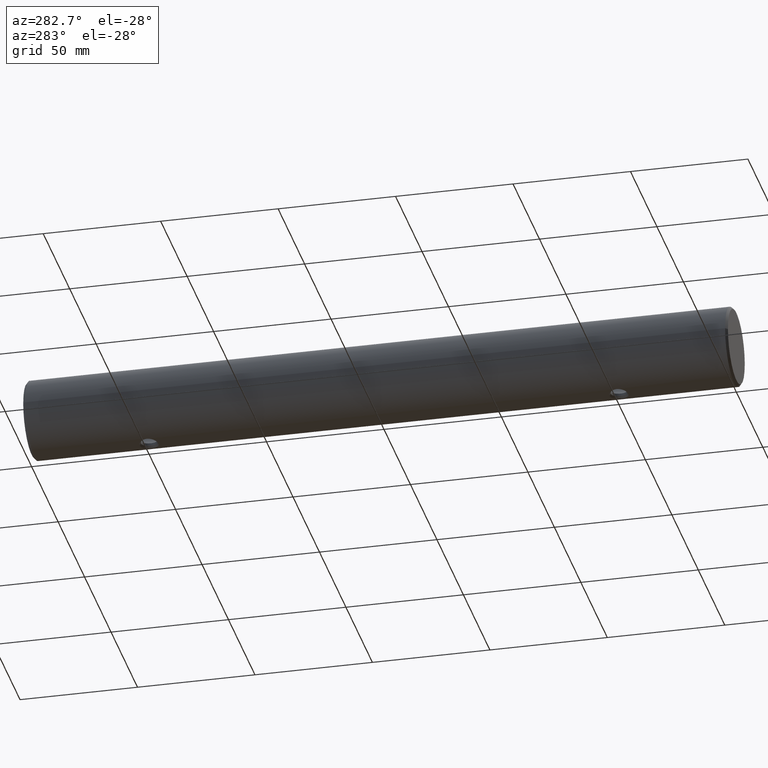
[diagram: clean part render]
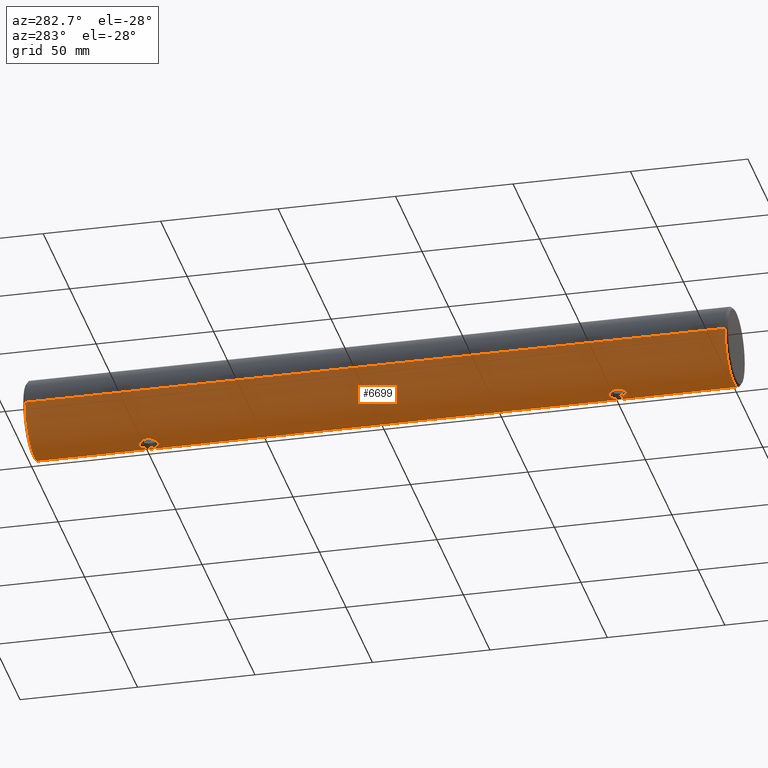
[diagram: same view with one face highlighted and labeled with its STEP entity id]
A machine part, auxiliary view. The second image highlights one B-rep face of the part: STEP entity #6699.
In plain terms, the highlighted cylindrical surface (partial cylindrical patch) has radius 16.85 mm, axis along (-0, 1, -0).
Its self-contained STEP definition (entity closure, byte-faithful):
#37 = CARTESIAN_POINT ( 'NONE',  ( -3.837042047171622000, 101.6554111769435000, -16.40739376038673200 ) ) ;
#103 = DIRECTION ( 'NONE',  ( -1.000000000000000000, 0.0000000000000000000, 0.0000000000000000000 ) ) ;
#191 = CARTESIAN_POINT ( 'NONE',  ( -0.2800285594003235100, -95.99803607256146200, -16.84994530848629400 ) ) ;
#286 = CARTESIAN_POINT ( 'NONE',  ( -3.343415595767132800, -97.56258584142953800, -16.51520715125525000 ) ) ;
#329 = ORIENTED_EDGE ( 'NONE', *, *, #4824, .T. ) ;
#428 = DIRECTION ( 'NONE',  ( -1.000000000000000000, 0.0000000000000000000, 0.0000000000000000000 ) ) ;
#810 = FACE_OUTER_BOUND ( 'NONE', #14661, .T. ) ;
#841 = CARTESIAN_POINT ( 'NONE',  ( -3.423453887774091400, -102.3348839833501400, -16.49874419015992200 ) ) ;
#842 = CARTESIAN_POINT ( 'NONE',  ( -4.211731938987219000, 100.2623335797606200, -16.31514063911546900 ) ) ;
#887 = CARTESIAN_POINT ( 'NONE',  ( -1.360069313371323300, -103.7967521871487300, -16.79695426008747800 ) ) ;
#940 = CARTESIAN_POINT ( 'NONE',  ( -3.166655777992651200, -102.6419675782159700, -16.55000769960733500 ) ) ;
#978 = ORIENTED_EDGE ( 'NONE', *, *, #14134, .T. ) ;
#1000 = CARTESIAN_POINT ( 'NONE',  ( -2.112323122245880500, -103.4724136981685100, -16.71868724592423700 ) ) ;
#1049 = CARTESIAN_POINT ( 'NONE',  ( -1.867474881313892400, -103.5967352214258900, -16.74813418026936100 ) ) ;
#1097 = CARTESIAN_POINT ( 'NONE',  ( 0.2749665284855278300, 96.00416536418525500, -16.84832619817539600 ) ) ;
#1108 = CARTESIAN_POINT ( 'NONE',  ( 3.074238659617456000, 102.7387534976549300, -16.56748029639546300 ) ) ;
#1151 = CARTESIAN_POINT ( 'NONE',  ( 2.783036976575692400, 96.98461959690637000, -16.61976461277006200 ) ) ;
#1163 = CARTESIAN_POINT ( 'NONE',  ( 3.776710975074770300, 101.7762612725322700, -16.42143214178963400 ) ) ;
#1222 = CARTESIAN_POINT ( 'NONE',  ( 3.574024045909137500, 102.1213676933236200, -16.46678278271516400 ) ) ;
#1276 = CARTESIAN_POINT ( 'NONE',  ( 3.835645768178963100, 101.6582906262441500, -16.40771981741140800 ) ) ;
#1385 = CARTESIAN_POINT ( 'NONE',  ( 3.574024045666451600, -97.87863230635186100, -16.46678278276668600 ) ) ;
#1482 = CARTESIAN_POINT ( 'NONE',  ( 3.165549653021699800, -97.35689035878904500, -16.55021605181866200 ) ) ;
#1525 = CARTESIAN_POINT ( 'NONE',  ( 4.103373155876829200, 99.08835430959948100, -16.34275425717642300 ) ) ;
#1595 = CARTESIAN_POINT ( 'NONE',  ( 1.869556208068528600, -96.40406576300942700, -16.74793927531469300 ) ) ;
#1811 = CARTESIAN_POINT ( 'NONE',  ( 4.211730070169865700, -99.99626092956032200, -16.31514112154808100 ) ) ;
#2039 = CARTESIAN_POINT ( 'NONE',  ( -16.85000000000010100, 150.0000000000000000, 0.0000000000000000000 ) ) ;
#2090 = CARTESIAN_POINT ( 'NONE',  ( 3.368925213785380000, -102.4586159329400900, -16.51454889763341400 ) ) ;
#2092 = CARTESIAN_POINT ( 'NONE',  ( -4.211731908247745800, 100.0000000000000000, -16.31514064705082100 ) ) ;
#2136 = EDGE_CURVE ( 'NONE', #15360, #12032, #5564, .T. ) ;
#2146 = CARTESIAN_POINT ( 'NONE',  ( -2.457226799590027000, 96.74690077399749600, -16.67027337823890700 ) ) ;
#2202 = CARTESIAN_POINT ( 'NONE',  ( -2.457226800053210300, -103.2530992257275700, -16.67027337817388100 ) ) ;
#2227 = DIRECTION ( 'NONE',  ( -1.000000000000000000, 0.0000000000000000000, 0.0000000000000000000 ) ) ;
#2250 = CARTESIAN_POINT ( 'NONE',  ( 3.677872854701027100, -102.0199067356602900, -16.44516054835499500 ) ) ;
#2309 = CARTESIAN_POINT ( 'NONE',  ( 3.943095795867362300, -101.4125843570392500, -16.38223024138953600 ) ) ;
#2360 = CARTESIAN_POINT ( 'NONE',  ( -16.85000000000014700, 149.0000000000000000, 0.0000000000000000000 ) ) ;
#2384 = CARTESIAN_POINT ( 'NONE',  ( 1.092724770926685900, 103.8740120444929000, -16.81671217818174200 ) ) ;
#2424 = CARTESIAN_POINT ( 'NONE',  ( 1.096819131793740400, 96.12701787678867000, -16.81645108300414600 ) ) ;
#2436 = CARTESIAN_POINT ( 'NONE',  ( 2.566736434887881400, 103.1837576096671300, -16.65494719251006100 ) ) ;
#2476 = CARTESIAN_POINT ( 'NONE',  ( 3.989646332264936500, 98.71084474834933100, -16.37091737067200000 ) ) ;
#2478 = ORIENTED_EDGE ( 'NONE', *, *, #2136, .F. ) ;
#2486 = CARTESIAN_POINT ( 'NONE',  ( -3.076975925597483600, 102.7359345154787900, -16.56696710249646600 ) ) ;
#2544 = CARTESIAN_POINT ( 'NONE',  ( -1.097480643936445300, 103.8728910208368200, -16.81642323792736000 ) ) ;
#2565 = DIRECTION ( 'NONE',  ( -3.061616997868382600E-016, 1.000000000000000000, -0.0000000000000000000 ) ) ;
#2645 = VERTEX_POINT ( 'NONE', #11725 ) ;
#2701 = CARTESIAN_POINT ( 'NONE',  ( -3.076975925502134100, -97.26406548443048900, -16.56696710251358700 ) ) ;
#2722 = VERTEX_POINT ( 'NONE', #15669 ) ;
#2756 = CARTESIAN_POINT ( 'NONE',  ( -2.125748111581590800, -96.50579600969936700, -16.72312987429675200 ) ) ;
#2809 = CARTESIAN_POINT ( 'NONE',  ( -1.365344543995390000, -96.20497208321525300, -16.79652281672624900 ) ) ;
#2853 = CARTESIAN_POINT ( 'NONE',  ( 2.111181489174618800, -96.52715720709132100, -16.71880123189894700 ) ) ;
#3080 = CARTESIAN_POINT ( 'NONE',  ( -4.211731908247800000, -100.0000000000000000, -16.31514064705079300 ) ) ;
#3366 = CARTESIAN_POINT ( 'NONE',  ( 0.5520275916941025400, 96.03013555184000400, -16.84152510344355500 ) ) ;
#3369 = CARTESIAN_POINT ( 'NONE',  ( -2.125748109811671500, 103.4942039912003800, -16.72312987446758100 ) ) ;
#3415 = CARTESIAN_POINT ( 'NONE',  ( -0.2757959065618584800, 95.99780212068685600, -16.85000435249002500 ) ) ;
#3466 = CARTESIAN_POINT ( 'NONE',  ( -2.566103789043500800, 96.82376236344474300, -16.65380172217056700 ) ) ;
#3525 = CARTESIAN_POINT ( 'NONE',  ( 4.211730070169865700, -99.99626092956032200, -16.31514112154808100 ) ) ;
#3546 = B_SPLINE_CURVE_WITH_KNOTS ( 'NONE', 3,
 ( #15264, #12768, #7758, #12865, #5380, #9124, #1385, #3911, #10329, #1482, #12660, #10379, #5170, #2853, #1595, #7715, #13921, #6436, #7812, #6594, #15150, #191, #10282, #8963, #2809, #2756, #10231, #2701, #11477, #286, #3968, #12713, #13967, #5272, #11586, #12812, #5329, #6494, #14382, #4281, #9391, #10487 ),
 .UNSPECIFIED., .F., .F.,
 ( 4, 2, 2, 2, 2, 2, 2, 2, 2, 2, 2, 2, 2, 2, 2, 2, 2, 2, 2, 2, 4 ),
 ( 0.5000000000000000000, 0.5624999999999977800, 0.5781249999999973400, 0.5937499999999966700, 0.6093749999999962300, 0.6249999999999956700, 0.6562499999999957800, 0.6874999999999957800, 0.7187499999999958900, 0.7343749999999961100, 0.7499999999999962300, 0.7812499999999966700, 0.8124999999999971100, 0.8749999999999984500, 0.8906249999999988900, 0.9062499999999993300, 0.9218749999999996700, 0.9375000000000000000, 0.9531250000000004400, 0.9687500000000008900, 1.000000000000000000 ),
 .UNSPECIFIED. ) ;
#3586 = CARTESIAN_POINT ( 'NONE',  ( 4.185015913652337700, -100.5221823759833100, -16.32211057644791600 ) ) ;
#3632 = CARTESIAN_POINT ( 'NONE',  ( 3.677872854981181700, 97.98009326513638900, -16.44516054828850200 ) ) ;
#3654 = CARTESIAN_POINT ( 'NONE',  ( -4.211731908247800000, -100.0000000000000000, -16.31514064705079300 ) ) ;
#3693 = CARTESIAN_POINT ( 'NONE',  ( 1.869556208286316400, 103.5959342368495200, -16.74793927529373500 ) ) ;
#3756 = CARTESIAN_POINT ( 'NONE',  ( -3.167954837395362800, 102.6405675005593000, -16.54976003581669600 ) ) ;
#3806 = CARTESIAN_POINT ( 'NONE',  ( -4.070027994292599900, 101.0378539592674500, -16.35111933031466700 ) ) ;
#3911 = CARTESIAN_POINT ( 'NONE',  ( 3.421433406940821400, -97.66246040978005300, -16.49916290408979000 ) ) ;
#3968 = CARTESIAN_POINT ( 'NONE',  ( -3.425803771748325400, -97.66820793005864200, -16.49825689640170300 ) ) ;
#4098 = CARTESIAN_POINT ( 'NONE',  ( -4.255647627037048900E-014, 149.0000000000000000, 0.0000000000000000000 ) ) ;
#4281 = CARTESIAN_POINT ( 'NONE',  ( -4.184601887936769200, -99.47624234911216900, -16.32221440565154000 ) ) ;
#4578 = VECTOR ( 'NONE', #8671, 1000.000000000000000 ) ;
#4659 = DIRECTION ( 'NONE',  ( -3.061616997868382600E-016, 1.000000000000000000, -0.0000000000000000000 ) ) ;
#4662 = CARTESIAN_POINT ( 'NONE',  ( -3.652583352767034200, 97.99034756238596300, -16.45009180361279600 ) ) ;
#4824 = EDGE_CURVE ( 'NONE', #10150, #8666, #3546, .T. ) ;
#4876 = ORIENTED_EDGE ( 'NONE', *, *, #12129, .T. ) ;
#4889 = CARTESIAN_POINT ( 'NONE',  ( 2.111181490249651300, 103.4728427922653500, -16.71880123174825500 ) ) ;
#4941 = CARTESIAN_POINT ( 'NONE',  ( 0.6905363496069736300, 96.04978702246693000, -16.83639047891821100 ) ) ;
#4951 = CARTESIAN_POINT ( 'NONE',  ( 0.1350485449509534800, 104.0022927717068600, -16.85002685795235800 ) ) ;
#5006 = CARTESIAN_POINT ( 'NONE',  ( -3.343415595767683000, 102.4374141585502100, -16.51520715125516100 ) ) ;
#5170 = CARTESIAN_POINT ( 'NONE',  ( 2.566736435962948100, -96.81624239097625700, -16.65494719235938000 ) ) ;
#5272 = CARTESIAN_POINT ( 'NONE',  ( -3.778863592558143700, -98.22791807784989300, -16.42093452297796900 ) ) ;
#5329 = CARTESIAN_POINT ( 'NONE',  ( -3.989226575757193900, -98.70962183040177300, -16.37102020509987500 ) ) ;
#5331 = CARTESIAN_POINT ( 'NONE',  ( 16.85000000000005800, 149.0000000000000000, 2.063529856563300100E-015 ) ) ;
#5380 = CARTESIAN_POINT ( 'NONE',  ( 3.776710974963771900, -98.22373872729042400, -16.42143214181470900 ) ) ;
#5399 = EDGE_CURVE ( 'NONE', #12032, #15801, #11025, .T. ) ;
#5564 = LINE ( 'NONE', #9812, #4578 ) ;
#5594 = CARTESIAN_POINT ( 'NONE',  ( 4.211730070169818600, 100.0037390704396900, -16.31514112154808100 ) ) ;
#5826 = CARTESIAN_POINT ( 'NONE',  ( -4.075885968968390400, -101.0416205046367000, -16.34970193961256200 ) ) ;
#5855 = VECTOR ( 'NONE', #4659, 1000.000000000000000 ) ;
#5878 = CARTESIAN_POINT ( 'NONE',  ( 0.1382966399004232900, -104.0021776382925900, -16.84999782061063600 ) ) ;
#5931 = CARTESIAN_POINT ( 'NONE',  ( 3.989646332193880400, -101.2891552518925400, -16.37091737068951500 ) ) ;
#5979 = CARTESIAN_POINT ( 'NONE',  ( -3.423453887773684200, 97.66511601666884700, -16.49874419016001100 ) ) ;
#6033 = CARTESIAN_POINT ( 'NONE',  ( 1.870609915823259200, -103.5954066856895100, -16.74781125501190400 ) ) ;
#6097 = CARTESIAN_POINT ( 'NONE',  ( 0.5520275906606121300, -103.9698644482979400, -16.84152510346892500 ) ) ;
#6103 = B_SPLINE_CURVE_WITH_KNOTS ( 'NONE', 3,
 ( #10657, #14764, #13574, #10875, #7310, #7148, #4662, #5979, #7361, #11089, #10981, #14816, #12234, #3466, #2146, #13360, #7249, #16002, #16059, #8627, #3415, #10926, #1097, #3366, #4941, #2424, #14051, #9116, #14979, #7586, #1151, #6203, #3632, #13625, #2476, #7478, #1525, #9890, #12435, #8688 ),
 .UNSPECIFIED., .F., .F.,
 ( 4, 2, 2, 2, 2, 2, 2, 2, 2, 2, 2, 2, 2, 2, 2, 2, 2, 2, 2, 4 ),
 ( 0.0000000000000000000, 0.03124999999999819600, 0.06249999999999639200, 0.09374999999999458800, 0.1093749999999943500, 0.1249999999999941200, 0.1406249999999938700, 0.1562499999999936400, 0.1874999999999940000, 0.2187499999999943700, 0.2499999999999947300, 0.2656249999999949500, 0.2812499999999951200, 0.3124999999999955600, 0.3437499999999959500, 0.3749999999999963900, 0.4374999999999982800, 0.4531249999999987200, 0.4687499999999991100, 0.5000000000000000000 ),
 .UNSPECIFIED. ) ;
#6162 = CARTESIAN_POINT ( 'NONE',  ( 4.211730070169818600, 100.0037390704396900, -16.31514112154808100 ) ) ;
#6203 = CARTESIAN_POINT ( 'NONE',  ( 3.368925212641777500, 97.54138406581773800, -16.51454889783878200 ) ) ;
#6216 = CARTESIAN_POINT ( 'NONE',  ( -0.2800285589879019700, 104.0019639274774900, -16.84994530848636900 ) ) ;
#6275 = CARTESIAN_POINT ( 'NONE',  ( -3.578748845340319100, 102.1142035424618800, -16.46575746220523200 ) ) ;
#6436 = CARTESIAN_POINT ( 'NONE',  ( 0.6869442779631775900, -96.04923281633269000, -16.83653606108383000 ) ) ;
#6494 = CARTESIAN_POINT ( 'NONE',  ( -4.070027994307590500, -98.96214604082332800, -16.35111933031096100 ) ) ;
#6594 = CARTESIAN_POINT ( 'NONE',  ( 0.2747739666625204600, -96.00414770026027600, -16.84833002262522700 ) ) ;
#6699 = ADVANCED_FACE ( 'NONE', ( #810, #10020, #8843 ), #8046, .T. ) ;
#6717 = EDGE_CURVE ( 'NONE', #15360, #2722, #10798, .T. ) ;
#7105 = CARTESIAN_POINT ( 'NONE',  ( -3.989226575772043300, 101.2903781695075100, -16.37102020509623700 ) ) ;
#7148 = CARTESIAN_POINT ( 'NONE',  ( -3.783003677497291500, 98.22130612713155500, -16.42020818204784400 ) ) ;
#7195 = CARTESIAN_POINT ( 'NONE',  ( -2.566103788770691000, -103.1762376367486400, -16.65380172221436800 ) ) ;
#7224 = CARTESIAN_POINT ( 'NONE',  ( -4.286263797015732700E-014, 150.0000000000000000, 0.0000000000000000000 ) ) ;
#7249 = CARTESIAN_POINT ( 'NONE',  ( -1.867474881313824200, 96.40326477861300700, -16.74813418026937100 ) ) ;
#7310 = CARTESIAN_POINT ( 'NONE',  ( -3.994873032934262500, 98.70550484352192200, -16.36995244392859000 ) ) ;
#7325 = AXIS2_PLACEMENT_3D ( 'NONE', #4098, #7842, #428 ) ;
#7337 = DIRECTION ( 'NONE',  ( -3.061616997868382600E-016, 1.000000000000000000, -0.0000000000000000000 ) ) ;
#7361 = CARTESIAN_POINT ( 'NONE',  ( -3.341774472971516600, 97.56058352409323200, -16.51553835165791300 ) ) ;
#7371 = CARTESIAN_POINT ( 'NONE',  ( 4.211286680376459500, 100.5269586144147100, -16.31525558198158900 ) ) ;
#7478 = CARTESIAN_POINT ( 'NONE',  ( 4.070030691066389900, 98.96224397625269400, -16.35111811429734300 ) ) ;
#7493 = CARTESIAN_POINT ( 'NONE',  ( -1.365344544880283500, 103.7950279163347900, -16.79652281664085200 ) ) ;
#7545 = CARTESIAN_POINT ( 'NONE',  ( -3.778863592558166400, 101.7720819221305800, -16.42093452297796900 ) ) ;
#7553 = AXIS2_PLACEMENT_3D ( 'NONE', #13879, #2565, #103 ) ;
#7586 = CARTESIAN_POINT ( 'NONE',  ( 2.571482480327033300, 96.81969220025770500, -16.65421251261386400 ) ) ;
#7715 = CARTESIAN_POINT ( 'NONE',  ( 1.357293245145016800, -96.20217300912075600, -16.79721600240467400 ) ) ;
#7758 = CARTESIAN_POINT ( 'NONE',  ( 4.099798510671862900, -98.94491255827661300, -16.34507024218372400 ) ) ;
#7764 = AXIS2_PLACEMENT_3D ( 'NONE', #7224, #7337, #2227 ) ;
#7812 = CARTESIAN_POINT ( 'NONE',  ( 0.5520010403896851200, -96.03013267760285000, -16.84152665691144400 ) ) ;
#7817 = B_SPLINE_CURVE_WITH_KNOTS ( 'NONE', 3,
 ( #6162, #7371, #8800, #1276, #1163, #9950, #1222, #11271, #16066, #8636, #1108, #10070, #2436, #4889, #3693, #12445, #2384, #12400, #9618, #10010, #4951, #6216, #14938, #2544, #7493, #3369, #16169, #2486, #3756, #5006, #13759, #6275, #14990, #7545, #37, #11321, #7105, #3806, #15794, #8363, #842, #2092 ),
 .UNSPECIFIED., .F., .F.,
 ( 4, 2, 2, 2, 2, 2, 2, 2, 2, 2, 2, 2, 2, 2, 2, 2, 2, 2, 2, 2, 4 ),
 ( 0.5000000000000000000, 0.5625000000000007800, 0.5781250000000008900, 0.5937500000000011100, 0.6093750000000013300, 0.6250000000000015500, 0.6562500000000017800, 0.6875000000000021100, 0.7187500000000024400, 0.7343750000000027800, 0.7500000000000031100, 0.7812500000000037700, 0.8125000000000043300, 0.8750000000000055500, 0.8906250000000050000, 0.9062500000000045500, 0.9218750000000040000, 0.9375000000000035500, 0.9531250000000031100, 0.9687500000000026600, 1.000000000000000000 ),
 .UNSPECIFIED. ) ;
#7842 = DIRECTION ( 'NONE',  ( -3.061616997868382600E-016, 1.000000000000000000, -0.0000000000000000000 ) ) ;
#8046 = CYLINDRICAL_SURFACE ( 'NONE', #7764, 16.85000000000005800 ) ;
#8252 = CARTESIAN_POINT ( 'NONE',  ( -3.783003677421664400, -101.7786938730028900, -16.42020818206577500 ) ) ;
#8361 = CARTESIAN_POINT ( 'NONE',  ( -3.652583352766388000, -102.0096524375761200, -16.45009180361292400 ) ) ;
#8363 = CARTESIAN_POINT ( 'NONE',  ( -4.184601887936676900, 100.5237576508492100, -16.32221440565157500 ) ) ;
#8469 = CARTESIAN_POINT ( 'NONE',  ( -0.5520148696836750800, -103.9764513741892000, -16.84316627435109500 ) ) ;
#8519 = CARTESIAN_POINT ( 'NONE',  ( -2.879311326720574100, -102.9237658551330800, -16.60246212192620500 ) ) ;
#8568 = CARTESIAN_POINT ( 'NONE',  ( -2.777870330786589700, -103.0110786408458900, -16.61979051862294200 ) ) ;
#8619 = LINE ( 'NONE', #2039, #5855 ) ;
#8627 = CARTESIAN_POINT ( 'NONE',  ( -0.5520148704965266400, 96.02354862596504900, -16.84316627431126200 ) ) ;
#8636 = CARTESIAN_POINT ( 'NONE',  ( 3.165549652808712400, 102.6431096414137700, -16.55021605186054900 ) ) ;
#8666 = VERTEX_POINT ( 'NONE', #3654 ) ;
#8671 = DIRECTION ( 'NONE',  ( -3.061616997868382600E-016, 1.000000000000000000, -0.0000000000000000000 ) ) ;
#8688 = CARTESIAN_POINT ( 'NONE',  ( 4.211730070169818600, 100.0037390704396900, -16.31514112154808100 ) ) ;
#8800 = CARTESIAN_POINT ( 'NONE',  ( 4.099798510518196400, 101.0550874419186700, -16.34507024222016700 ) ) ;
#8843 = FACE_BOUND ( 'NONE', #12069, .T. ) ;
#8963 = CARTESIAN_POINT ( 'NONE',  ( -1.097480645766710800, -96.12710897958879700, -16.81642323783755800 ) ) ;
#9116 = CARTESIAN_POINT ( 'NONE',  ( 1.870609915293411000, 96.40459331406248100, -16.74781125506292100 ) ) ;
#9124 = CARTESIAN_POINT ( 'NONE',  ( 3.646142116067296000, -97.99241816634621200, -16.45091569020027200 ) ) ;
#9172 = EDGE_LOOP ( 'NONE', ( #10735, #10161 ) ) ;
#9391 = CARTESIAN_POINT ( 'NONE',  ( -4.211731938987309600, -99.73766642027872800, -16.31514063911542700 ) ) ;
#9513 = CARTESIAN_POINT ( 'NONE',  ( -3.994873033010000600, -101.2944951563436100, -16.36995244391060900 ) ) ;
#9618 = CARTESIAN_POINT ( 'NONE',  ( 0.5520010403905063500, 103.9698673224165800, -16.84152665691141600 ) ) ;
#9777 = CARTESIAN_POINT ( 'NONE',  ( 2.571482479319799000, -103.1803078004873000, -16.65421251275535800 ) ) ;
#9812 = CARTESIAN_POINT ( 'NONE',  ( 16.85000000000001900, 150.0000000000000000, 2.063529856563297300E-015 ) ) ;
#9835 = CARTESIAN_POINT ( 'NONE',  ( 1.096819129316580500, -103.8729821237982900, -16.81645108312571700 ) ) ;
#9890 = CARTESIAN_POINT ( 'NONE',  ( 4.185015913600912200, 99.47781762357641400, -16.32211057646089700 ) ) ;
#9950 = CARTESIAN_POINT ( 'NONE',  ( 3.646142115956204900, 102.0075818338311000, -16.45091569022533700 ) ) ;
#10010 = CARTESIAN_POINT ( 'NONE',  ( 0.2747739666617264900, 103.9958522997202700, -16.84833002262525200 ) ) ;
#10020 = FACE_BOUND ( 'NONE', #9172, .T. ) ;
#10070 = CARTESIAN_POINT ( 'NONE',  ( 2.781228555159426500, 103.0168973369852000, -16.62006782642339100 ) ) ;
#10150 = VERTEX_POINT ( 'NONE', #1811 ) ;
#10161 = ORIENTED_EDGE ( 'NONE', *, *, #12314, .T. ) ;
#10224 = ORIENTED_EDGE ( 'NONE', *, *, #5399, .F. ) ;
#10231 = CARTESIAN_POINT ( 'NONE',  ( -2.592800539962611100, -96.80337238321108400, -16.65397137352345100 ) ) ;
#10282 = CARTESIAN_POINT ( 'NONE',  ( -0.5538761374907883500, -96.02384378648335400, -16.84309281296739900 ) ) ;
#10329 = CARTESIAN_POINT ( 'NONE',  ( 3.339483625520086800, -97.55779933748756600, -16.51599845854028800 ) ) ;
#10379 = CARTESIAN_POINT ( 'NONE',  ( 2.781228555622118600, -96.98310266345403400, -16.62006782634036400 ) ) ;
#10487 = CARTESIAN_POINT ( 'NONE',  ( -4.211731908247800000, -100.0000000000000000, -16.31514064705079300 ) ) ;
#10551 = VERTEX_POINT ( 'NONE', #5594 ) ;
#10657 = CARTESIAN_POINT ( 'NONE',  ( -4.211731908247745800, 100.0000000000000000, -16.31514064705082100 ) ) ;
#10735 = ORIENTED_EDGE ( 'NONE', *, *, #14170, .T. ) ;
#10764 = CARTESIAN_POINT ( 'NONE',  ( -3.341774473353684700, -102.4394164754842400, -16.51553835158267300 ) ) ;
#10798 = CIRCLE ( 'NONE', #7553, 16.85000000000001600 ) ;
#10826 = CARTESIAN_POINT ( 'NONE',  ( -4.211731877233293500, -100.2646802927063700, -16.31514065505715300 ) ) ;
#10875 = CARTESIAN_POINT ( 'NONE',  ( -4.075885969039217300, 98.95837949550723100, -16.34970193959466700 ) ) ;
#10926 = CARTESIAN_POINT ( 'NONE',  ( 0.1382966401271835400, 95.99782236168802300, -16.84999782061063200 ) ) ;
#10962 = ORIENTED_EDGE ( 'NONE', *, *, #6717, .T. ) ;
#10981 = CARTESIAN_POINT ( 'NONE',  ( -3.073013874511383300, 97.26005890821683400, -16.56770255506608400 ) ) ;
#11025 = CIRCLE ( 'NONE', #7325, 16.85000000000010400 ) ;
#11089 = CARTESIAN_POINT ( 'NONE',  ( -3.166655778374737600, 97.35803242220663400, -16.55000769953213800 ) ) ;
#11271 = CARTESIAN_POINT ( 'NONE',  ( 3.421433406698070700, 102.3375395905444400, -16.49916290414127600 ) ) ;
#11321 = CARTESIAN_POINT ( 'NONE',  ( -3.942944516312019600, 101.4129517472635900, -16.38226633349076900 ) ) ;
#11477 = CARTESIAN_POINT ( 'NONE',  ( -3.167954837396026200, -97.35943249946092200, -16.54976003581655400 ) ) ;
#11586 = CARTESIAN_POINT ( 'NONE',  ( -3.837042047095257800, -98.34458882286200800, -16.40739376040483000 ) ) ;
#11725 = CARTESIAN_POINT ( 'NONE',  ( -4.211731908247745800, 100.0000000000000000, -16.31514064705082100 ) ) ;
#11922 = B_SPLINE_CURVE_WITH_KNOTS ( 'NONE', 3,
 ( #3080, #10826, #12077, #5826, #9513, #8252, #8361, #841, #10764, #940, #12337, #8519, #8568, #7195, #2202, #1000, #1049, #887, #14716, #8469, #14656, #5878, #15851, #6097, #13458, #9835, #12185, #6033, #12284, #9777, #14605, #2090, #2250, #2309, #5931, #13406, #15896, #3586, #13517, #3525 ),
 .UNSPECIFIED., .F., .F.,
 ( 4, 2, 2, 2, 2, 2, 2, 2, 2, 2, 2, 2, 2, 2, 2, 2, 2, 2, 2, 4 ),
 ( 0.0000000000000000000, 0.03125000000000077000, 0.06250000000000154000, 0.09375000000000230400, 0.1093750000000027200, 0.1250000000000031400, 0.1406250000000035500, 0.1562500000000039700, 0.1875000000000039400, 0.2187500000000039400, 0.2500000000000039400, 0.2656250000000039400, 0.2812500000000039400, 0.3125000000000036100, 0.3437500000000032800, 0.3750000000000028900, 0.4375000000000022200, 0.4531250000000016700, 0.4687500000000011100, 0.5000000000000000000 ),
 .UNSPECIFIED. ) ;
#12032 = VERTEX_POINT ( 'NONE', #5331 ) ;
#12069 = EDGE_LOOP ( 'NONE', ( #978, #329 ) ) ;
#12077 = CARTESIAN_POINT ( 'NONE',  ( -4.183843855645590400, -100.5289064535876200, -16.32240945870984900 ) ) ;
#12129 = EDGE_CURVE ( 'NONE', #2722, #15801, #8619, .T. ) ;
#12185 = CARTESIAN_POINT ( 'NONE',  ( 1.359696500481781800, -103.7969913616241200, -16.79701130312346200 ) ) ;
#12234 = CARTESIAN_POINT ( 'NONE',  ( -2.777870330513696500, 96.98892135896089400, -16.61979051866679300 ) ) ;
#12284 = CARTESIAN_POINT ( 'NONE',  ( 2.116314076766848500, -103.4700144354656900, -16.71814975677466100 ) ) ;
#12314 = EDGE_CURVE ( 'NONE', #10551, #2645, #7817, .T. ) ;
#12337 = CARTESIAN_POINT ( 'NONE',  ( -3.073013874977587300, -102.7399410913990200, -16.56770255498241400 ) ) ;
#12400 = CARTESIAN_POINT ( 'NONE',  ( 0.6869442779644319200, 103.9507671836864900, -16.83653606108376600 ) ) ;
#12435 = CARTESIAN_POINT ( 'NONE',  ( 4.211951765066499000, 99.74212929845221300, -16.31508389133133400 ) ) ;
#12445 = CARTESIAN_POINT ( 'NONE',  ( 1.357293244927256300, 103.7978269910202300, -16.79721600242562100 ) ) ;
#12648 = CARTESIAN_POINT ( 'NONE',  ( 16.85000000000006500, -149.0000000000000000, 2.063529856563292200E-015 ) ) ;
#12660 = CARTESIAN_POINT ( 'NONE',  ( 3.074238659386136200, -97.26124650212548800, -16.56748029643699000 ) ) ;
#12713 = CARTESIAN_POINT ( 'NONE',  ( -3.578748845340018500, -97.88579645755697800, -16.46575746220528600 ) ) ;
#12768 = CARTESIAN_POINT ( 'NONE',  ( 4.211286680376586500, -99.47304138566332200, -16.31525558198157100 ) ) ;
#12812 = CARTESIAN_POINT ( 'NONE',  ( -3.942944516388492200, -98.58704825293087000, -16.38226633347261400 ) ) ;
#12865 = CARTESIAN_POINT ( 'NONE',  ( 3.835645768140606200, -98.34170937370701900, -16.40771981742051400 ) ) ;
#13360 = CARTESIAN_POINT ( 'NONE',  ( -2.112323123172119600, 96.52758630238142200, -16.71868724579422900 ) ) ;
#13406 = CARTESIAN_POINT ( 'NONE',  ( 4.070030691137511700, -101.0377560235056200, -16.35111811427984200 ) ) ;
#13458 = CARTESIAN_POINT ( 'NONE',  ( 0.6905363508456009400, -103.9502129772396700, -16.83639047885743200 ) ) ;
#13517 = CARTESIAN_POINT ( 'NONE',  ( 4.211951765066508800, -100.2578707015088600, -16.31508389133135100 ) ) ;
#13574 = CARTESIAN_POINT ( 'NONE',  ( -4.183843855574652400, 99.47109354626839200, -16.32240945872779700 ) ) ;
#13625 = CARTESIAN_POINT ( 'NONE',  ( 3.943095795797263700, 98.58741564276159900, -16.38223024140615200 ) ) ;
#13759 = CARTESIAN_POINT ( 'NONE',  ( -3.425803771747941700, 102.3317920699224600, -16.49825689640179100 ) ) ;
#13879 = CARTESIAN_POINT ( 'NONE',  ( 4.867971026610731000E-014, -149.0000000000000000, 0.0000000000000000000 ) ) ;
#13921 = CARTESIAN_POINT ( 'NONE',  ( 1.092724770929198300, -96.12598795546863100, -16.81671217818161800 ) ) ;
#13967 = CARTESIAN_POINT ( 'NONE',  ( -3.649451941271544700, -97.99793082296112300, -16.45017936642151200 ) ) ;
#14051 = CARTESIAN_POINT ( 'NONE',  ( 1.359696501011598700, 96.20300863862394200, -16.79701130307243400 ) ) ;
#14134 = EDGE_CURVE ( 'NONE', #8666, #10150, #11922, .T. ) ;
#14170 = EDGE_CURVE ( 'NONE', #2645, #10551, #6103, .T. ) ;
#14382 = CARTESIAN_POINT ( 'NONE',  ( -4.103947168864235300, -99.09089412761727500, -16.34260954227685000 ) ) ;
#14605 = CARTESIAN_POINT ( 'NONE',  ( 2.783036976003939100, -103.0153804037147400, -16.61976461287275300 ) ) ;
#14656 = CARTESIAN_POINT ( 'NONE',  ( -0.2757959061083329900, -104.0021978793520800, -16.85000435249001400 ) ) ;
#14661 = EDGE_LOOP ( 'NONE', ( #2478, #10962, #4876, #10224 ) ) ;
#14716 = CARTESIAN_POINT ( 'NONE',  ( -1.097146856404785900, -103.8730125777690500, -16.81645739557743400 ) ) ;
#14764 = CARTESIAN_POINT ( 'NONE',  ( -4.211731877233298800, 99.73531970731342300, -16.31514065505716700 ) ) ;
#14816 = CARTESIAN_POINT ( 'NONE',  ( -2.879311327186693200, 97.07623414525116300, -16.60246212184257100 ) ) ;
#14938 = CARTESIAN_POINT ( 'NONE',  ( -0.5538761393210268600, 103.9761562130909700, -16.84309281287761500 ) ) ;
#14979 = CARTESIAN_POINT ( 'NONE',  ( 2.116314075759549300, 96.52998556378936700, -16.71814975691614100 ) ) ;
#14990 = CARTESIAN_POINT ( 'NONE',  ( -3.649451941271411900, 102.0020691770584700, -16.45017936642156200 ) ) ;
#15150 = CARTESIAN_POINT ( 'NONE',  ( 0.1350485451571892000, -95.99770722827364000, -16.85002685795239700 ) ) ;
#15264 = CARTESIAN_POINT ( 'NONE',  ( 4.211730070169865700, -99.99626092956032200, -16.31514112154808100 ) ) ;
#15360 = VERTEX_POINT ( 'NONE', #12648 ) ;
#15669 = CARTESIAN_POINT ( 'NONE',  ( -16.84999999999996200, -149.0000000000000000, 0.0000000000000000000 ) ) ;
#15794 = CARTESIAN_POINT ( 'NONE',  ( -4.103947168864198900, 100.9091058724020400, -16.34260954227686500 ) ) ;
#15801 = VERTEX_POINT ( 'NONE', #2360 ) ;
#15851 = CARTESIAN_POINT ( 'NONE',  ( 0.2749665295190504800, -103.9958346356768900, -16.84832619815003300 ) ) ;
#15896 = CARTESIAN_POINT ( 'NONE',  ( 4.103373155851184800, -100.9116456906207200, -16.34275425718292900 ) ) ;
#16002 = CARTESIAN_POINT ( 'NONE',  ( -1.360069313371334400, 96.20324781281246400, -16.79695426008747500 ) ) ;
#16059 = CARTESIAN_POINT ( 'NONE',  ( -1.097146855591906600, 96.12698742207676600, -16.81645739561726700 ) ) ;
#16066 = CARTESIAN_POINT ( 'NONE',  ( 3.339483625733043100, 102.4422006623095700, -16.51599845849838000 ) ) ;
#16169 = CARTESIAN_POINT ( 'NONE',  ( -2.592800539581006500, 103.1966276171519300, -16.65397137359203600 ) ) ;